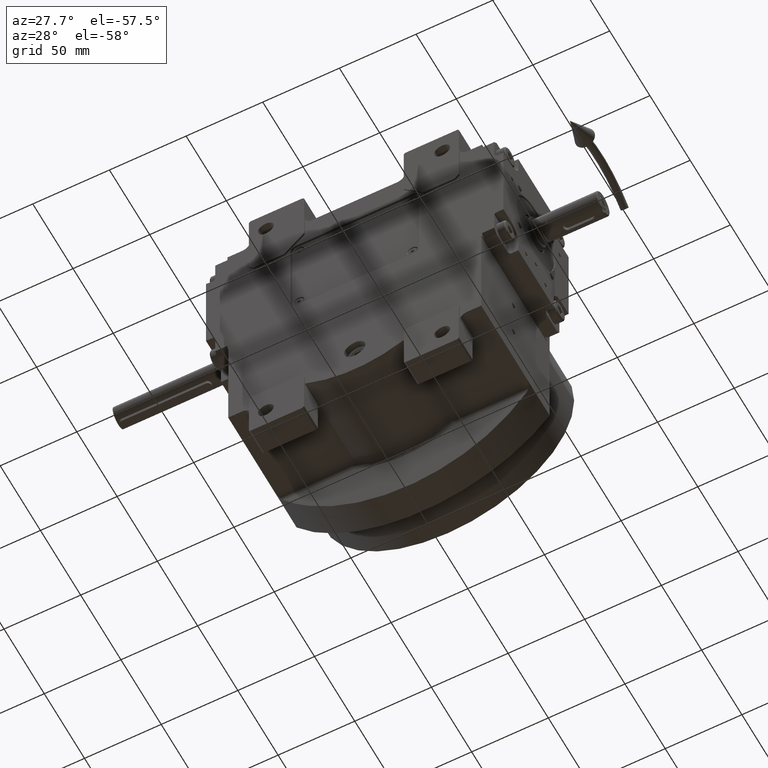
[diagram: clean part render]
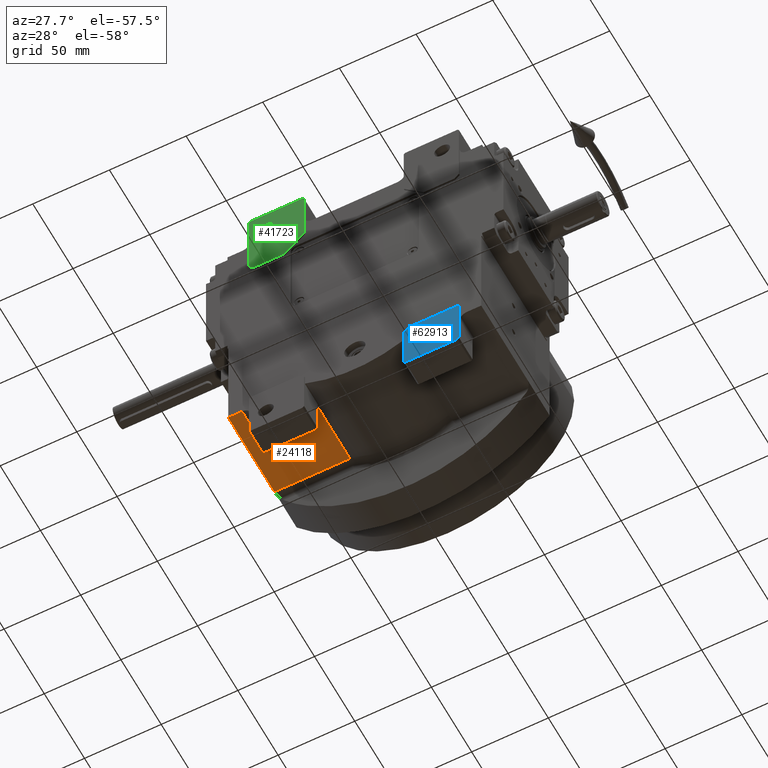
[diagram: same view with three faces highlighted in distinct colors, each labeled with its STEP entity id]
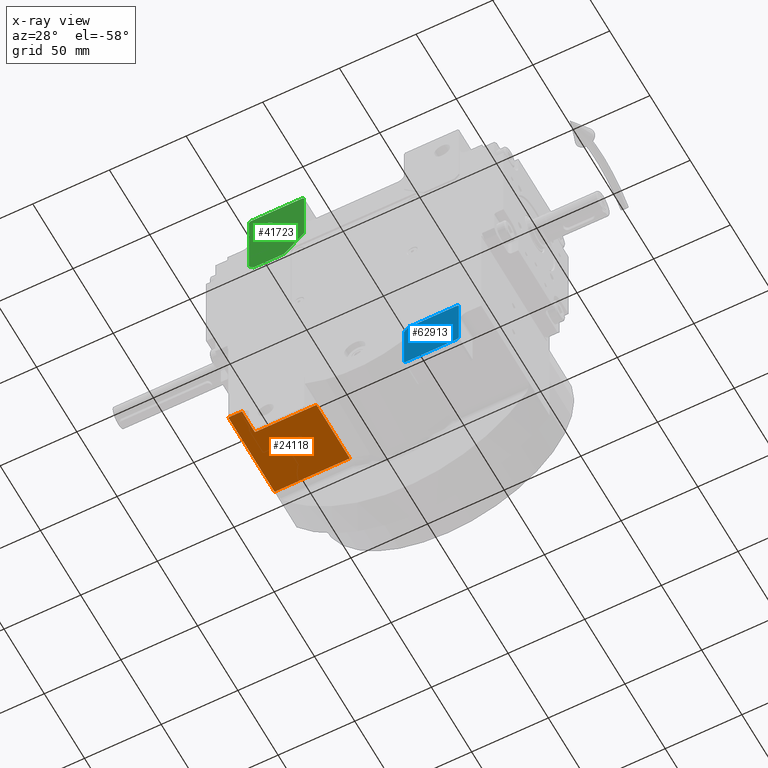
[diagram: x-ray of the same camera — body ghosted, the three highlighted faces saturated]
A machine part, auxiliary view with three faces highlighted in distinct colors.
The next image is the same camera in x-ray (body ghosted, the three faces saturated) — at least one of them is partly hidden behind the body in this view.
Their STEP definitions:

[orange] entity #24118 — the highlighted planar face has unit normal (0, 0, 1).
#497 = DIRECTION ( 'NONE',  ( -1.000000000000000000, 0.000000000000000000, 0.000000000000000000 ) ) ;
#1258 = DIRECTION ( 'NONE',  ( -1.000000000000000000, 0.000000000000000000, 0.000000000000000000 ) ) ;
#2995 = VECTOR ( 'NONE', #11920, 1000.000000000000000 ) ;
#4453 = ORIENTED_EDGE ( 'NONE', *, *, #49718, .F. ) ;
#4670 = CARTESIAN_POINT ( 'NONE',  ( -32.07479364771125319, -40.50000000000000000, -58.50000000000000000 ) ) ;
#6652 = CARTESIAN_POINT ( 'NONE',  ( -82.50000000000000000, -40.50000000000000000, -58.50000000000000000 ) ) ;
#9467 = PLANE ( 'NONE',  #33155 ) ;
#11165 = VECTOR ( 'NONE', #26628, 1000.000000000000000 ) ;
#11594 = CARTESIAN_POINT ( 'NONE',  ( -82.50000000000000000, -40.50000000000000000, -58.50000000000000000 ) ) ;
#11920 = DIRECTION ( 'NONE',  ( 1.000000000000000000, 0.000000000000000000, 0.000000000000000000 ) ) ;
#13307 = ORIENTED_EDGE ( 'NONE', *, *, #55257, .F. ) ;
#17062 = VECTOR ( 'NONE', #26648, 1000.000000000000000 ) ;
#20067 = LINE ( 'NONE', #43935, #36200 ) ;
#21187 = LINE ( 'NONE', #6652, #17062 ) ;
#21461 = VECTOR ( 'NONE', #1258, 1000.000000000000000 ) ;
#22549 = CARTESIAN_POINT ( 'NONE',  ( -73.50000000000000000, -40.50000000000000000, -58.50000000000000000 ) ) ;
#24118 = ADVANCED_FACE ( 'NONE', ( #24982 ), #9467, .F. ) ;
#24982 = FACE_OUTER_BOUND ( 'NONE', #32348, .T. ) ;
#26628 = DIRECTION ( 'NONE',  ( 0.000000000000000000, 1.000000000000000000, 0.000000000000000000 ) ) ;
#26648 = DIRECTION ( 'NONE',  ( 0.000000000000000000, 1.000000000000000000, 0.000000000000000000 ) ) ;
#27273 = LINE ( 'NONE', #60448, #11165 ) ;
#28595 = VERTEX_POINT ( 'NONE', #29085 ) ;
#28698 = ORIENTED_EDGE ( 'NONE', *, *, #56009, .F. ) ;
#29085 = CARTESIAN_POINT ( 'NONE',  ( -33.32502203188484913, 16.91834412991290293, -58.50000000000000000 ) ) ;
#32348 = EDGE_LOOP ( 'NONE', ( #4453, #46800, #28698, #49132, #53796, #13307 ) ) ;
#32818 = EDGE_CURVE ( 'NONE', #63426, #52736, #60593, .T. ) ;
#33155 = AXIS2_PLACEMENT_3D ( 'NONE', #4670, #58799, #497 ) ;
#35163 = VERTEX_POINT ( 'NONE', #52648 ) ;
#35215 = VERTEX_POINT ( 'NONE', #40073 ) ;
#36200 = VECTOR ( 'NONE', #39718, 1000.000000000000000 ) ;
#36947 = VECTOR ( 'NONE', #59347, 1000.000000000000000 ) ;
#37225 = CARTESIAN_POINT ( 'NONE',  ( -33.32502203188484913, -24.50000000000000000, -58.50000000000000000 ) ) ;
#39718 = DIRECTION ( 'NONE',  ( 0.000000000000000000, 1.000000000000000000, 0.000000000000000000 ) ) ;
#40073 = CARTESIAN_POINT ( 'NONE',  ( -82.50000025268040815, 16.91834885168089997, -58.49999999999780442 ) ) ;
#41444 = CARTESIAN_POINT ( 'NONE',  ( -82.50000000000000000, -40.50000000000000000, -58.50000000000000000 ) ) ;
#42277 = EDGE_CURVE ( 'NONE', #63426, #35215, #21187, .T. ) ;
#43935 = CARTESIAN_POINT ( 'NONE',  ( -33.32502203188484913, -24.50000000000000000, -58.50000000000000000 ) ) ;
#45019 = EDGE_CURVE ( 'NONE', #47606, #35163, #60578, .T. ) ;
#46800 = ORIENTED_EDGE ( 'NONE', *, *, #45019, .T. ) ;
#47606 = VERTEX_POINT ( 'NONE', #37225 ) ;
#48996 = CARTESIAN_POINT ( 'NONE',  ( -33.32502203188484913, 16.91834412991290293, -58.50000000000000000 ) ) ;
#49132 = ORIENTED_EDGE ( 'NONE', *, *, #32818, .F. ) ;
#49718 = EDGE_CURVE ( 'NONE', #47606, #28595, #20067, .T. ) ;
#50246 = LINE ( 'NONE', #48996, #21461 ) ;
#52648 = CARTESIAN_POINT ( 'NONE',  ( -73.50000000000000000, -24.50000000000000000, -58.50000000000000000 ) ) ;
#52736 = VERTEX_POINT ( 'NONE', #22549 ) ;
#53796 = ORIENTED_EDGE ( 'NONE', *, *, #42277, .T. ) ;
#54504 = CARTESIAN_POINT ( 'NONE',  ( -33.32502203188484913, -24.50000000000000000, -58.50000000000000000 ) ) ;
#55257 = EDGE_CURVE ( 'NONE', #28595, #35215, #50246, .T. ) ;
#56009 = EDGE_CURVE ( 'NONE', #52736, #35163, #27273, .T. ) ;
#58799 = DIRECTION ( 'NONE',  ( 0.000000000000000000, 0.000000000000000000, 1.000000000000000000 ) ) ;
#59347 = DIRECTION ( 'NONE',  ( -1.000000000000000000, 0.000000000000000000, 0.000000000000000000 ) ) ;
#60448 = CARTESIAN_POINT ( 'NONE',  ( -73.50000000000000000, -40.50000000000000000, -58.50000000000000000 ) ) ;
#60578 = LINE ( 'NONE', #54504, #36947 ) ;
#60593 = LINE ( 'NONE', #11594, #2995 ) ;
#63426 = VERTEX_POINT ( 'NONE', #41444 ) ;

[blue] entity #62913 — the highlighted planar face has unit normal (0, -1, 0).
#411 = ORIENTED_EDGE ( 'NONE', *, *, #35284, .T. ) ;
#913 = CARTESIAN_POINT ( 'NONE',  ( 35.50000000000000000, -41.50000000000000000, -49.00000000000000000 ) ) ;
#1097 = ORIENTED_EDGE ( 'NONE', *, *, #10049, .T. ) ;
#1586 = LINE ( 'NONE', #59058, #22207 ) ;
#2115 = CARTESIAN_POINT ( 'NONE',  ( 32.50000000000000000, -41.50000000000000000, -52.00000000000000000 ) ) ;
#2247 = ORIENTED_EDGE ( 'NONE', *, *, #38034, .T. ) ;
#2353 = VERTEX_POINT ( 'NONE', #35042 ) ;
#2396 = VERTEX_POINT ( 'NONE', #54693 ) ;
#3091 = VERTEX_POINT ( 'NONE', #26267 ) ;
#3342 = AXIS2_PLACEMENT_3D ( 'NONE', #32478, #7937, #28590 ) ;
#3906 = EDGE_CURVE ( 'NONE', #3091, #29683, #6606, .T. ) ;
#4416 = EDGE_CURVE ( 'NONE', #14626, #15889, #50742, .T. ) ;
#4425 = CARTESIAN_POINT ( 'NONE',  ( 52.25000000000000000, -41.50000000000000000, -70.00000000000000000 ) ) ;
#5010 = EDGE_CURVE ( 'NONE', #47650, #31440, #18692, .T. ) ;
#5336 = EDGE_LOOP ( 'NONE', ( #36845, #53096, #47284, #2247, #1097, #37196, #411, #61139 ) ) ;
#5732 = LINE ( 'NONE', #913, #55026 ) ;
#6386 = DIRECTION ( 'NONE',  ( 1.000000000000000000, 0.000000000000000000, 0.000000000000000000 ) ) ;
#6606 = CIRCLE ( 'NONE', #53968, 5.249999999999997335 ) ;
#6769 = DIRECTION ( 'NONE',  ( 0.7071067811865474617, 0.000000000000000000, 0.7071067811865474617 ) ) ;
#7937 = DIRECTION ( 'NONE',  ( 0.000000000000000000, -1.000000000000000000, 0.000000000000000000 ) ) ;
#10049 = EDGE_CURVE ( 'NONE', #63202, #2353, #1586, .T. ) ;
#10225 = CARTESIAN_POINT ( 'NONE',  ( 67.50000000000000000, -41.50000000000000000, -49.00000000000000000 ) ) ;
#11752 = CARTESIAN_POINT ( 'NONE',  ( 32.50000000000000000, -41.50000000000000000, -84.00000000000000000 ) ) ;
#12554 = VECTOR ( 'NONE', #32601, 1000.000000000000000 ) ;
#14237 = VERTEX_POINT ( 'NONE', #58437 ) ;
#14616 = EDGE_CURVE ( 'NONE', #14237, #14626, #18959, .T. ) ;
#14626 = VERTEX_POINT ( 'NONE', #10225 ) ;
#14691 = EDGE_CURVE ( 'NONE', #15889, #47650, #5732, .T. ) ;
#15889 = VERTEX_POINT ( 'NONE', #30645 ) ;
#16445 = DIRECTION ( 'NONE',  ( 0.000000000000000000, 1.000000000000000000, 0.000000000000000000 ) ) ;
#17493 = CARTESIAN_POINT ( 'NONE',  ( 67.50000000000000000, -41.50000000000000000, -49.00000000000000000 ) ) ;
#18692 = LINE ( 'NONE', #58046, #12554 ) ;
#18959 = LINE ( 'NONE', #38629, #42695 ) ;
#19724 = VECTOR ( 'NONE', #56836, 1000.000000000000000 ) ;
#20512 = CARTESIAN_POINT ( 'NONE',  ( 33.50000000000000000, -41.50000000000000000, -85.00000000000000000 ) ) ;
#21901 = VECTOR ( 'NONE', #40498, 1000.000000000000114 ) ;
#22207 = VECTOR ( 'NONE', #6386, 1000.000000000000000 ) ;
#26267 = CARTESIAN_POINT ( 'NONE',  ( 62.75000000000000000, -41.50000000000000000, -70.00000000000000000 ) ) ;
#27445 = EDGE_CURVE ( 'NONE', #29683, #3091, #59090, .T. ) ;
#27605 = DIRECTION ( 'NONE',  ( 1.000000000000000000, 0.000000000000000000, 2.643388153869421593E-15 ) ) ;
#28590 = DIRECTION ( 'NONE',  ( -1.000000000000000000, 0.000000000000000000, 0.000000000000000000 ) ) ;
#28836 = ORIENTED_EDGE ( 'NONE', *, *, #27445, .T. ) ;
#29683 = VERTEX_POINT ( 'NONE', #4425 ) ;
#30521 = ORIENTED_EDGE ( 'NONE', *, *, #3906, .T. ) ;
#30645 = CARTESIAN_POINT ( 'NONE',  ( 35.50000000000000000, -41.50000000000000000, -49.00000000000000000 ) ) ;
#31293 = LINE ( 'NONE', #61238, #37031 ) ;
#31440 = VERTEX_POINT ( 'NONE', #52437 ) ;
#31793 = DIRECTION ( 'NONE',  ( 0.000000000000000000, 1.000000000000000000, 0.000000000000000000 ) ) ;
#32478 = CARTESIAN_POINT ( 'NONE',  ( 0.000000000000000000, -41.50000000000000000, 0.000000000000000000 ) ) ;
#32601 = DIRECTION ( 'NONE',  ( 0.000000000000000000, 0.000000000000000000, -1.000000000000000000 ) ) ;
#35042 = CARTESIAN_POINT ( 'NONE',  ( 67.50000000000000000, -41.50000000000000000, -85.00000000000000000 ) ) ;
#35216 = LINE ( 'NONE', #53596, #40150 ) ;
#35284 = EDGE_CURVE ( 'NONE', #2396, #14237, #35216, .T. ) ;
#35396 = DIRECTION ( 'NONE',  ( -0.7071067811865474617, 0.000000000000000000, -0.7071067811865474617 ) ) ;
#36845 = ORIENTED_EDGE ( 'NONE', *, *, #4416, .T. ) ;
#37031 = VECTOR ( 'NONE', #6769, 1000.000000000000114 ) ;
#37196 = ORIENTED_EDGE ( 'NONE', *, *, #48099, .T. ) ;
#38034 = EDGE_CURVE ( 'NONE', #31440, #63202, #46267, .T. ) ;
#38629 = CARTESIAN_POINT ( 'NONE',  ( 68.50000000000000000, -41.50000000000000000, -50.00000000000000000 ) ) ;
#39543 = AXIS2_PLACEMENT_3D ( 'NONE', #53889, #16445, #50955 ) ;
#39754 = DIRECTION ( 'NONE',  ( 0.000000000000000000, 0.000000000000000000, 1.000000000000000000 ) ) ;
#40150 = VECTOR ( 'NONE', #39754, 1000.000000000000000 ) ;
#40498 = DIRECTION ( 'NONE',  ( 0.7071067811865474617, 0.000000000000000000, -0.7071067811865474617 ) ) ;
#42110 = CARTESIAN_POINT ( 'NONE',  ( 57.50000000000000000, -41.50000000000000000, -70.00000000000000000 ) ) ;
#42470 = PLANE ( 'NONE',  #3342 ) ;
#42695 = VECTOR ( 'NONE', #58285, 1000.000000000000114 ) ;
#46267 = LINE ( 'NONE', #11752, #21901 ) ;
#47284 = ORIENTED_EDGE ( 'NONE', *, *, #5010, .T. ) ;
#47650 = VERTEX_POINT ( 'NONE', #2115 ) ;
#48099 = EDGE_CURVE ( 'NONE', #2353, #2396, #31293, .T. ) ;
#48971 = EDGE_LOOP ( 'NONE', ( #30521, #28836 ) ) ;
#50742 = LINE ( 'NONE', #17493, #19724 ) ;
#50955 = DIRECTION ( 'NONE',  ( -1.000000000000000000, 0.000000000000000000, -2.643388153869421593E-15 ) ) ;
#52437 = CARTESIAN_POINT ( 'NONE',  ( 32.50000000000000000, -41.50000000000000000, -84.00000000000000000 ) ) ;
#53096 = ORIENTED_EDGE ( 'NONE', *, *, #14691, .T. ) ;
#53596 = CARTESIAN_POINT ( 'NONE',  ( 68.50000000000000000, -41.50000000000000000, -84.00000000000000000 ) ) ;
#53889 = CARTESIAN_POINT ( 'NONE',  ( 57.50000000000000000, -41.50000000000000000, -70.00000000000000000 ) ) ;
#53968 = AXIS2_PLACEMENT_3D ( 'NONE', #42110, #31793, #27605 ) ;
#54693 = CARTESIAN_POINT ( 'NONE',  ( 68.50000000000000000, -41.50000000000000000, -84.00000000000000000 ) ) ;
#55026 = VECTOR ( 'NONE', #35396, 1000.000000000000114 ) ;
#56836 = DIRECTION ( 'NONE',  ( -1.000000000000000000, 0.000000000000000000, 0.000000000000000000 ) ) ;
#56965 = FACE_OUTER_BOUND ( 'NONE', #5336, .T. ) ;
#58046 = CARTESIAN_POINT ( 'NONE',  ( 32.50000000000000000, -41.50000000000000000, -52.00000000000000000 ) ) ;
#58285 = DIRECTION ( 'NONE',  ( -0.7071067811865474617, 0.000000000000000000, 0.7071067811865474617 ) ) ;
#58437 = CARTESIAN_POINT ( 'NONE',  ( 68.50000000000000000, -41.50000000000000000, -50.00000000000000000 ) ) ;
#59058 = CARTESIAN_POINT ( 'NONE',  ( 33.50000000000000000, -41.50000000000000000, -85.00000000000000000 ) ) ;
#59090 = CIRCLE ( 'NONE', #39543, 5.249999999999997335 ) ;
#61139 = ORIENTED_EDGE ( 'NONE', *, *, #14616, .T. ) ;
#61238 = CARTESIAN_POINT ( 'NONE',  ( 67.50000000000000000, -41.50000000000000000, -85.00000000000000000 ) ) ;
#61785 = FACE_BOUND ( 'NONE', #48971, .T. ) ;
#62913 = ADVANCED_FACE ( 'NONE', ( #61785, #56965 ), #42470, .T. ) ;
#63202 = VERTEX_POINT ( 'NONE', #20512 ) ;

[green] entity #41723 — the highlighted planar face has unit normal (0, -1, 0).
#330 = DIRECTION ( 'NONE',  ( 0.000000000000000000, -1.000000000000000000, 0.000000000000000000 ) ) ;
#351 = VECTOR ( 'NONE', #27739, 1000.000000000000000 ) ;
#473 = VERTEX_POINT ( 'NONE', #29927 ) ;
#744 = EDGE_LOOP ( 'NONE', ( #14990, #63652, #41098, #8706, #58403, #25287, #37780, #48176 ) ) ;
#1079 = VERTEX_POINT ( 'NONE', #32002 ) ;
#1491 = VERTEX_POINT ( 'NONE', #40034 ) ;
#1957 = CARTESIAN_POINT ( 'NONE',  ( -65.50000000000000000, -41.50000000000000000, 89.00000000000000000 ) ) ;
#2258 = CARTESIAN_POINT ( 'NONE',  ( -57.50000000000000000, -41.50000000000000000, 125.0000000000000000 ) ) ;
#2598 = DIRECTION ( 'NONE',  ( 1.000000000000000000, 0.000000000000000000, 0.000000000000000000 ) ) ;
#2903 = LINE ( 'NONE', #1957, #54387 ) ;
#3895 = LINE ( 'NONE', #14188, #53827 ) ;
#5146 = ORIENTED_EDGE ( 'NONE', *, *, #54516, .T. ) ;
#5780 = FACE_BOUND ( 'NONE', #41633, .T. ) ;
#6822 = DIRECTION ( 'NONE',  ( 0.000000000000000000, 0.000000000000000000, -1.000000000000000000 ) ) ;
#7535 = LINE ( 'NONE', #17203, #24751 ) ;
#7720 = DIRECTION ( 'NONE',  ( 1.000000000000000000, 0.000000000000000000, 5.286776307738843186E-15 ) ) ;
#8706 = ORIENTED_EDGE ( 'NONE', *, *, #52389, .T. ) ;
#9961 = PLANE ( 'NONE',  #15904 ) ;
#11914 = VERTEX_POINT ( 'NONE', #59313 ) ;
#12548 = LINE ( 'NONE', #26786, #351 ) ;
#14156 = CARTESIAN_POINT ( 'NONE',  ( -32.49999999999934630, -41.50000000000000000, 102.0000000000000000 ) ) ;
#14188 = CARTESIAN_POINT ( 'NONE',  ( -68.50000000000000000, -41.50000000000000000, 92.00000000000000000 ) ) ;
#14990 = ORIENTED_EDGE ( 'NONE', *, *, #61693, .T. ) ;
#15277 = CIRCLE ( 'NONE', #55449, 5.249999999999997335 ) ;
#15904 = AXIS2_PLACEMENT_3D ( 'NONE', #49955, #330, #54454 ) ;
#17203 = CARTESIAN_POINT ( 'NONE',  ( -67.50000000000000000, -41.50000000000000000, 140.0000000000000000 ) ) ;
#17828 = CARTESIAN_POINT ( 'NONE',  ( -32.49999999999934630, -41.50000000000000000, 139.0000000000000000 ) ) ;
#18339 = VERTEX_POINT ( 'NONE', #33475 ) ;
#18922 = EDGE_CURVE ( 'NONE', #1079, #62583, #7535, .T. ) ;
#21663 = CARTESIAN_POINT ( 'NONE',  ( -68.50000000000000000, -41.50000000000000000, 139.0000000000000000 ) ) ;
#23506 = CARTESIAN_POINT ( 'NONE',  ( -68.50000000000000000, -41.50000000000000000, 139.0000000000000000 ) ) ;
#24751 = VECTOR ( 'NONE', #42055, 1000.000000000000114 ) ;
#24857 = EDGE_CURVE ( 'NONE', #43883, #42904, #12548, .T. ) ;
#25287 = ORIENTED_EDGE ( 'NONE', *, *, #24857, .T. ) ;
#26786 = CARTESIAN_POINT ( 'NONE',  ( -45.49999999999939604, -41.50000000000000000, 89.00000000000000000 ) ) ;
#27365 = ORIENTED_EDGE ( 'NONE', *, *, #46646, .T. ) ;
#27739 = DIRECTION ( 'NONE',  ( 0.7071067811865480168, 0.000000000000000000, 0.7071067811865470176 ) ) ;
#28154 = VERTEX_POINT ( 'NONE', #63335 ) ;
#28428 = DIRECTION ( 'NONE',  ( 0.7071067811865474617, 0.000000000000000000, -0.7071067811865474617 ) ) ;
#28560 = CIRCLE ( 'NONE', #40938, 5.249999999999997335 ) ;
#28581 = LINE ( 'NONE', #57886, #29087 ) ;
#29007 = VERTEX_POINT ( 'NONE', #58021 ) ;
#29087 = VECTOR ( 'NONE', #33418, 1000.000000000000000 ) ;
#29887 = CARTESIAN_POINT ( 'NONE',  ( -57.50000000000000000, -41.50000000000000000, 125.0000000000000000 ) ) ;
#29927 = CARTESIAN_POINT ( 'NONE',  ( -33.49999999999934630, -41.50000000000000000, 140.0000000000000000 ) ) ;
#32002 = CARTESIAN_POINT ( 'NONE',  ( -67.50000000000000000, -41.50000000000000000, 140.0000000000000000 ) ) ;
#33418 = DIRECTION ( 'NONE',  ( -1.000000000000000000, 0.000000000000000000, 0.000000000000000000 ) ) ;
#33475 = CARTESIAN_POINT ( 'NONE',  ( -65.50000000000000000, -41.50000000000000000, 89.00000000000000000 ) ) ;
#34129 = EDGE_CURVE ( 'NONE', #18339, #43883, #2903, .T. ) ;
#34608 = LINE ( 'NONE', #21663, #60854 ) ;
#34887 = EDGE_CURVE ( 'NONE', #42904, #1491, #41737, .T. ) ;
#35152 = EDGE_CURVE ( 'NONE', #1491, #473, #48454, .T. ) ;
#37780 = ORIENTED_EDGE ( 'NONE', *, *, #34887, .T. ) ;
#40034 = CARTESIAN_POINT ( 'NONE',  ( -32.49999999999934630, -41.50000000000000000, 139.0000000000000000 ) ) ;
#40276 = FACE_OUTER_BOUND ( 'NONE', #744, .T. ) ;
#40938 = AXIS2_PLACEMENT_3D ( 'NONE', #29887, #59507, #49534 ) ;
#41098 = ORIENTED_EDGE ( 'NONE', *, *, #60452, .T. ) ;
#41633 = EDGE_LOOP ( 'NONE', ( #27365, #5146 ) ) ;
#41723 = ADVANCED_FACE ( 'NONE', ( #5780, #40276 ), #9961, .T. ) ;
#41737 = LINE ( 'NONE', #56216, #54532 ) ;
#42055 = DIRECTION ( 'NONE',  ( -0.7071067811865474617, 0.000000000000000000, -0.7071067811865474617 ) ) ;
#42904 = VERTEX_POINT ( 'NONE', #14156 ) ;
#43486 = CARTESIAN_POINT ( 'NONE',  ( -45.49999999999939604, -41.50000000000000000, 89.00000000000000000 ) ) ;
#43883 = VERTEX_POINT ( 'NONE', #43486 ) ;
#46646 = EDGE_CURVE ( 'NONE', #29007, #28154, #15277, .T. ) ;
#47186 = DIRECTION ( 'NONE',  ( -0.7071067811865474617, 0.000000000000000000, 0.7071067811865474617 ) ) ;
#48176 = ORIENTED_EDGE ( 'NONE', *, *, #35152, .T. ) ;
#48454 = LINE ( 'NONE', #17828, #62785 ) ;
#49534 = DIRECTION ( 'NONE',  ( -1.000000000000000000, 0.000000000000000000, 5.286776307738843186E-15 ) ) ;
#49955 = CARTESIAN_POINT ( 'NONE',  ( 0.000000000000000000, -41.50000000000000000, 0.000000000000000000 ) ) ;
#51244 = DIRECTION ( 'NONE',  ( 0.000000000000000000, 1.000000000000000000, 0.000000000000000000 ) ) ;
#51376 = DIRECTION ( 'NONE',  ( 0.000000000000000000, 0.000000000000000000, 1.000000000000000000 ) ) ;
#52389 = EDGE_CURVE ( 'NONE', #11914, #18339, #3895, .T. ) ;
#53827 = VECTOR ( 'NONE', #28428, 1000.000000000000114 ) ;
#54387 = VECTOR ( 'NONE', #2598, 1000.000000000000000 ) ;
#54454 = DIRECTION ( 'NONE',  ( -1.000000000000000000, 0.000000000000000000, 0.000000000000000000 ) ) ;
#54516 = EDGE_CURVE ( 'NONE', #28154, #29007, #28560, .T. ) ;
#54532 = VECTOR ( 'NONE', #51376, 1000.000000000000000 ) ;
#55449 = AXIS2_PLACEMENT_3D ( 'NONE', #2258, #51244, #7720 ) ;
#56216 = CARTESIAN_POINT ( 'NONE',  ( -32.49999999999934630, -41.50000000000000000, 102.0000000000000000 ) ) ;
#57886 = CARTESIAN_POINT ( 'NONE',  ( -33.49999999999934630, -41.50000000000000000, 140.0000000000000000 ) ) ;
#58021 = CARTESIAN_POINT ( 'NONE',  ( -52.25000000000000000, -41.50000000000000000, 125.0000000000000000 ) ) ;
#58403 = ORIENTED_EDGE ( 'NONE', *, *, #34129, .T. ) ;
#59313 = CARTESIAN_POINT ( 'NONE',  ( -68.50000000000000000, -41.50000000000000000, 92.00000000000000000 ) ) ;
#59507 = DIRECTION ( 'NONE',  ( 0.000000000000000000, 1.000000000000000000, 0.000000000000000000 ) ) ;
#60452 = EDGE_CURVE ( 'NONE', #62583, #11914, #34608, .T. ) ;
#60854 = VECTOR ( 'NONE', #6822, 1000.000000000000000 ) ;
#61693 = EDGE_CURVE ( 'NONE', #473, #1079, #28581, .T. ) ;
#62583 = VERTEX_POINT ( 'NONE', #23506 ) ;
#62785 = VECTOR ( 'NONE', #47186, 1000.000000000000114 ) ;
#63335 = CARTESIAN_POINT ( 'NONE',  ( -62.75000000000000000, -41.50000000000000000, 125.0000000000000000 ) ) ;
#63652 = ORIENTED_EDGE ( 'NONE', *, *, #18922, .T. ) ;